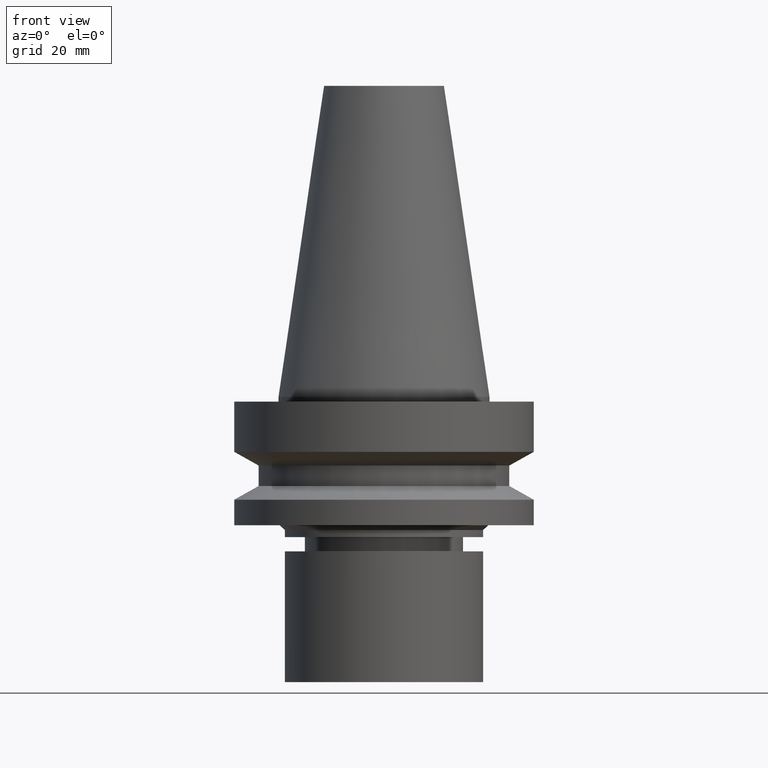
[diagram: clean part render]
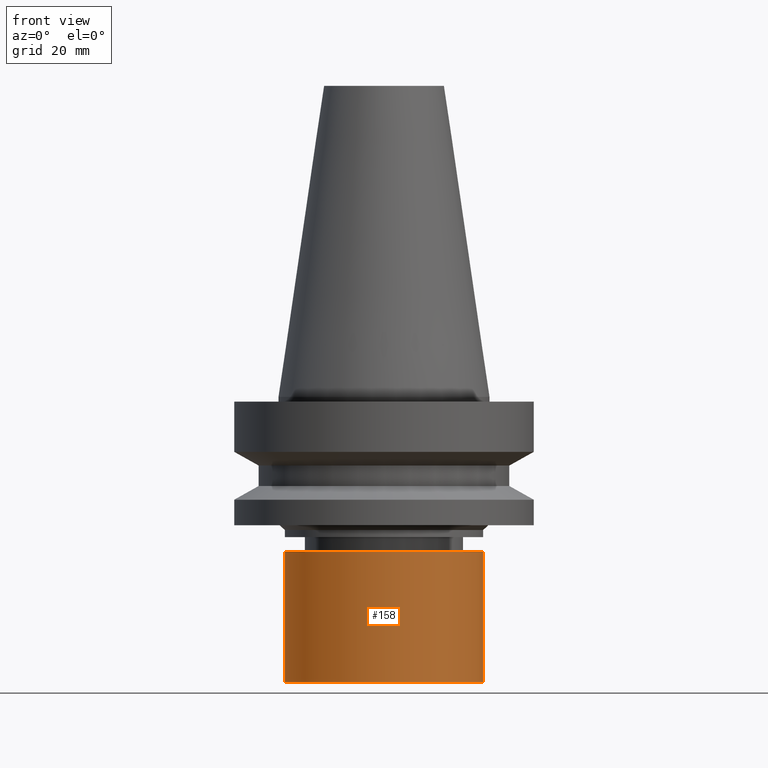
[diagram: same view with one face highlighted and labeled with its STEP entity id]
A machine part, front view. The second image highlights one B-rep face of the part: STEP entity #158.
In plain terms, the highlighted cylindrical surface (bore or boss wall) has radius 21 mm, axis along (0, -0, -1).
Its self-contained STEP definition (entity closure, byte-faithful):
#101=EDGE_CURVE('Unnamed[1]',#239,#239,#240,.T.);
#147=EDGE_CURVE('Unnamed[1]',#311,#311,#312,.T.);
#158=ADVANCED_FACE('Unnamed[1]',(#328,#329),#330,.T.);
#239=VERTEX_POINT('',#424);
#240=CIRCLE('',#425,21.0);
#311=VERTEX_POINT('',#515);
#312=CIRCLE('',#516,21.0);
#328=FACE_BOUND('',#536,.T.);
#329=FACE_BOUND('',#537,.T.);
#330=CYLINDRICAL_SURFACE('',#538,21.0);
#424=CARTESIAN_POINT('',(3.67394039744205E-015,21.0,-59.9999999999999));
#425=AXIS2_PLACEMENT_3D('',#621,#622,#623);
#515=CARTESIAN_POINT('',(1.99005104861444E-015,21.0,-32.4999999999999));
#516=AXIS2_PLACEMENT_3D('',#701,#702,#703);
#536=EDGE_LOOP('',(#720));
#537=EDGE_LOOP('',(#721));
#538=AXIS2_PLACEMENT_3D('',#722,#723,#724);
#621=CARTESIAN_POINT('',(3.67394039744205E-015,9.32546966659976E-015,-59.9999999999999));
#622=DIRECTION('',(6.12323399573677E-017,-5.36731610657134E-016,-1.0));
#623=DIRECTION('',(2.80381797188541E-032,1.0,-5.36731610657134E-016));
#701=CARTESIAN_POINT('',(1.99005104861444E-015,2.4085588959671E-014,-32.4999999999999));
#702=DIRECTION('',(6.12323399573677E-017,-5.36731610657134E-016,-1.0));
#703=DIRECTION('',(2.80381797188541E-032,1.0,-5.36731610657134E-016));
#720=ORIENTED_EDGE('',*,*,#101,.F.);
#721=ORIENTED_EDGE('',*,*,#147,.T.);
#722=CARTESIAN_POINT('',(2.83199572302825E-015,1.67055293131354E-014,-46.2499999999999));
#723=DIRECTION('',(6.12323399573677E-017,-5.36731610657134E-016,-1.0));
#724=DIRECTION('',(2.80381797188541E-032,1.0,-5.36731610657134E-016));